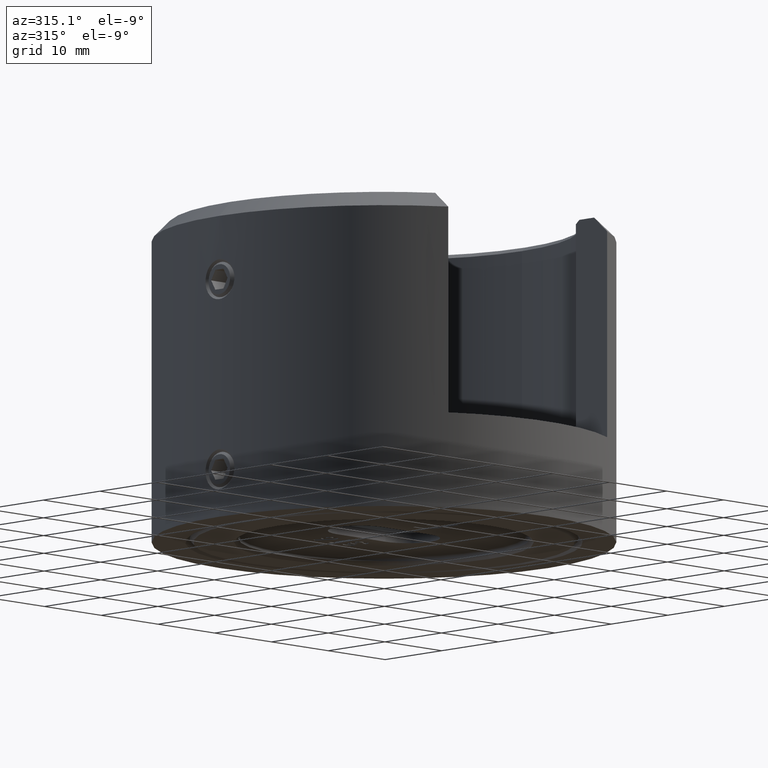
[diagram: clean part render]
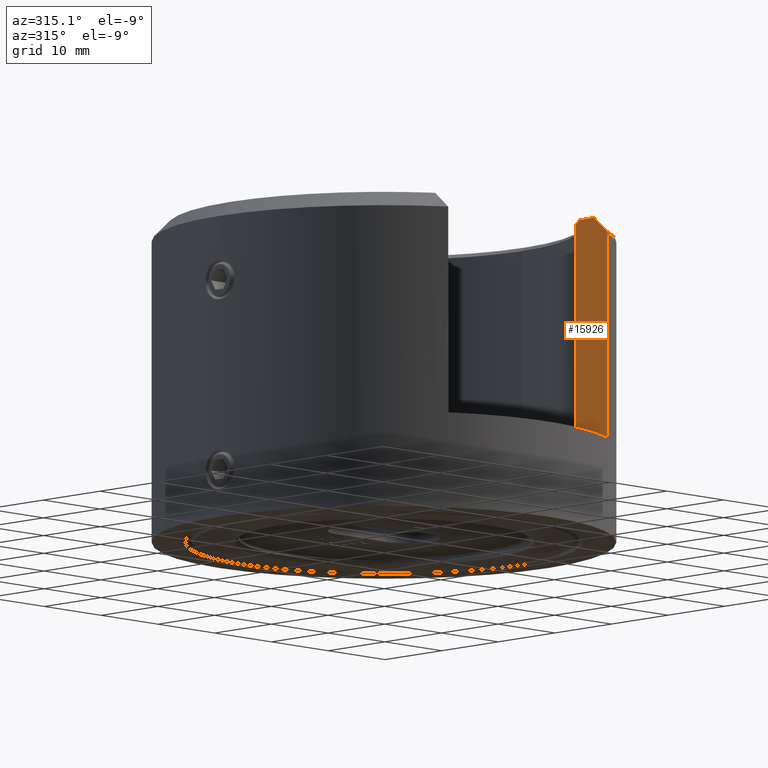
[diagram: same view with one face highlighted and labeled with its STEP entity id]
A machine part, auxiliary view. The second image highlights one B-rep face of the part: STEP entity #15926.
In plain terms, the highlighted planar face has unit normal (1, 0, 0).
Its self-contained STEP definition (entity closure, byte-faithful):
#691 = EDGE_CURVE ( 'NONE', #6482, #21623, #27215, .T. ) ;
#834 = VECTOR ( 'NONE', #26949, 1000.000000000000000 ) ;
#957 = LINE ( 'NONE', #20141, #1628 ) ;
#1628 = VECTOR ( 'NONE', #9354, 1000.000000000000000 ) ;
#1720 = DIRECTION ( 'NONE',  ( -0.0000000000000000000, -0.0000000000000000000, 1.000000000000000000 ) ) ;
#2145 = ORIENTED_EDGE ( 'NONE', *, *, #691, .F. ) ;
#2268 = VECTOR ( 'NONE', #1720, 1000.000000000000000 ) ;
#2576 = VERTEX_POINT ( 'NONE', #23277 ) ;
#3469 = VERTEX_POINT ( 'NONE', #20830 ) ;
#3527 = FACE_OUTER_BOUND ( 'NONE', #19599, .T. ) ;
#4756 = VECTOR ( 'NONE', #14554, 1000.000000000000000 ) ;
#5749 = CARTESIAN_POINT ( 'NONE',  ( 14.00000000000000400, -28.99999999999999600, 20.00000000000000000 ) ) ;
#6482 = VERTEX_POINT ( 'NONE', #21289 ) ;
#6529 = LINE ( 'NONE', #5749, #834 ) ;
#6564 = CARTESIAN_POINT ( 'NONE',  ( 14.00000000000000400, -20.47046653107835800, 20.00000000000000000 ) ) ;
#7039 = CARTESIAN_POINT ( 'NONE',  ( 14.00000000000000400, -25.39685019840058500, -8.000000000000000000 ) ) ;
#8243 = EDGE_CURVE ( 'NONE', #14541, #2576, #6529, .T. ) ;
#9069 = CARTESIAN_POINT ( 'NONE',  ( 14.00000000000000400, -23.86091577688371900, 19.33807342095973800 ) ) ;
#9354 = DIRECTION ( 'NONE',  ( -1.334402673828313300E-016, 1.000000000000000000, 0.0000000000000000000 ) ) ;
#10086 = CARTESIAN_POINT ( 'NONE',  ( 14.00000000000000400, -19.86177232776571700, -8.000000000000000000 ) ) ;
#11014 = CARTESIAN_POINT ( 'NONE',  ( 14.00000000000000400, -28.99999999999999600, -8.000000000000000000 ) ) ;
#11569 = EDGE_CURVE ( 'NONE', #18452, #3469, #19388, .T. ) ;
#12362 = EDGE_CURVE ( 'NONE', #6482, #14541, #27264, .T. ) ;
#13276 = PLANE ( 'NONE',  #25896 ) ;
#13534 = EDGE_CURVE ( 'NONE', #2576, #3469, #16806, .T. ) ;
#14541 = VERTEX_POINT ( 'NONE', #17590 ) ;
#14554 = DIRECTION ( 'NONE',  ( -0.0000000000000000000, -0.0000000000000000000, -1.000000000000000000 ) ) ;
#15196 = CARTESIAN_POINT ( 'NONE',  ( 14.00000000000000500, -24.63061297513371500, 18.67103489571541200 ) ) ;
#15926 = ADVANCED_FACE ( 'NONE', ( #3527 ), #13276, .F. ) ;
#16806 = B_SPLINE_CURVE_WITH_KNOTS ( 'NONE', 3,
 ( #6564, #21376, #21557, #27744 ),
 .UNSPECIFIED., .F., .F.,
 ( 4, 4 ),
 ( 0.0000000000000000000, 0.0007877237035575292300 ),
 .UNSPECIFIED. ) ;
#17588 = ORIENTED_EDGE ( 'NONE', *, *, #12362, .T. ) ;
#17590 = CARTESIAN_POINT ( 'NONE',  ( 14.00000000000000400, -23.08679276123038400, 20.00000000000000000 ) ) ;
#18452 = VERTEX_POINT ( 'NONE', #10086 ) ;
#18478 = CARTESIAN_POINT ( 'NONE',  ( 14.00000000000000400, -25.39685019840058500, 20.00000000000000000 ) ) ;
#19388 = LINE ( 'NONE', #27580, #2268 ) ;
#19599 = EDGE_LOOP ( 'NONE', ( #2145, #17588, #26570, #25277, #23879, #22697 ) ) ;
#19649 = DIRECTION ( 'NONE',  ( 1.000000000000000000, 1.334402673828313300E-016, 0.0000000000000000000 ) ) ;
#20141 = CARTESIAN_POINT ( 'NONE',  ( 14.00000000000000400, -28.99999999999999600, -8.000000000000000000 ) ) ;
#20830 = CARTESIAN_POINT ( 'NONE',  ( 14.00000000000000400, -19.86177232776571700, 19.50000000000002100 ) ) ;
#21289 = CARTESIAN_POINT ( 'NONE',  ( 14.00000000000000400, -25.39685019840058500, 17.99999999999999600 ) ) ;
#21376 = CARTESIAN_POINT ( 'NONE',  ( 14.00000000000000400, -20.26796548504801300, 19.83285117398094500 ) ) ;
#21557 = CARTESIAN_POINT ( 'NONE',  ( 14.00000000000000200, -20.06507600167693500, 19.66617165780342800 ) ) ;
#21623 = VERTEX_POINT ( 'NONE', #7039 ) ;
#21873 = DIRECTION ( 'NONE',  ( -1.334402673828313300E-016, 1.000000000000000000, 0.0000000000000000000 ) ) ;
#22697 = ORIENTED_EDGE ( 'NONE', *, *, #24200, .F. ) ;
#23277 = CARTESIAN_POINT ( 'NONE',  ( 14.00000000000000400, -20.47046653107835800, 20.00000000000000000 ) ) ;
#23798 = CARTESIAN_POINT ( 'NONE',  ( 14.00000000000000400, -23.08679276123038400, 20.00000000000000000 ) ) ;
#23879 = ORIENTED_EDGE ( 'NONE', *, *, #11569, .F. ) ;
#23887 = CARTESIAN_POINT ( 'NONE',  ( 14.00000000000000400, -25.39685019840058500, 17.99999999999999600 ) ) ;
#24200 = EDGE_CURVE ( 'NONE', #21623, #18452, #957, .T. ) ;
#25277 = ORIENTED_EDGE ( 'NONE', *, *, #13534, .T. ) ;
#25896 = AXIS2_PLACEMENT_3D ( 'NONE', #11014, #19649, #21873 ) ;
#26570 = ORIENTED_EDGE ( 'NONE', *, *, #8243, .T. ) ;
#26949 = DIRECTION ( 'NONE',  ( -1.334402673828313300E-016, 1.000000000000000000, 0.0000000000000000000 ) ) ;
#27215 = LINE ( 'NONE', #18478, #4756 ) ;
#27264 = B_SPLINE_CURVE_WITH_KNOTS ( 'NONE', 3,
 ( #23887, #15196, #9069, #23798 ),
 .UNSPECIFIED., .F., .F.,
 ( 4, 4 ),
 ( 4.906538933386797400E-018, 0.003055546655350792900 ),
 .UNSPECIFIED. ) ;
#27580 = CARTESIAN_POINT ( 'NONE',  ( 14.00000000000000400, -19.86177232776571700, -20.00000000000000000 ) ) ;
#27744 = CARTESIAN_POINT ( 'NONE',  ( 14.00000000000000400, -19.86177232776571700, 19.50000000000002100 ) ) ;